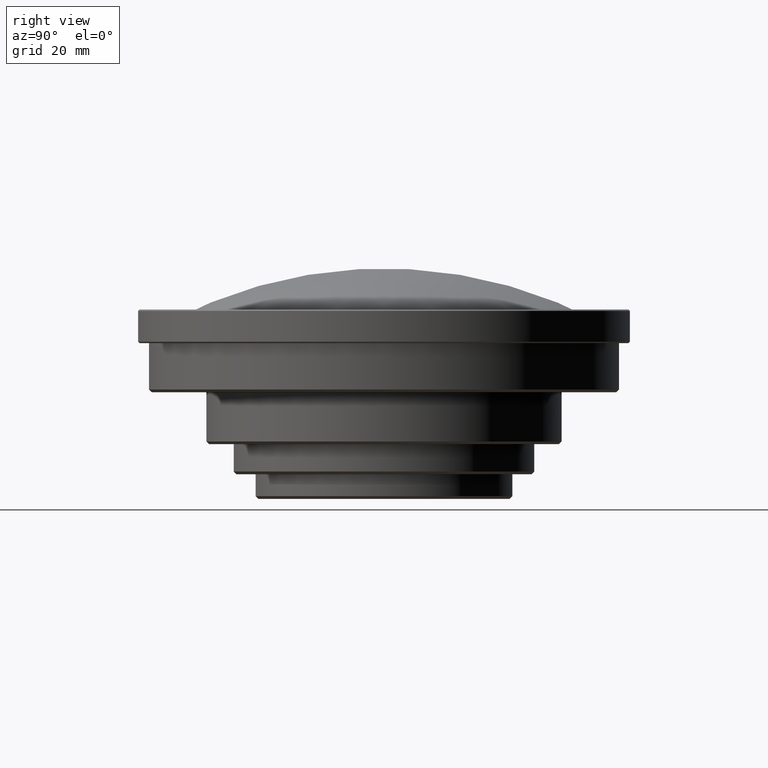
[diagram: clean part render]
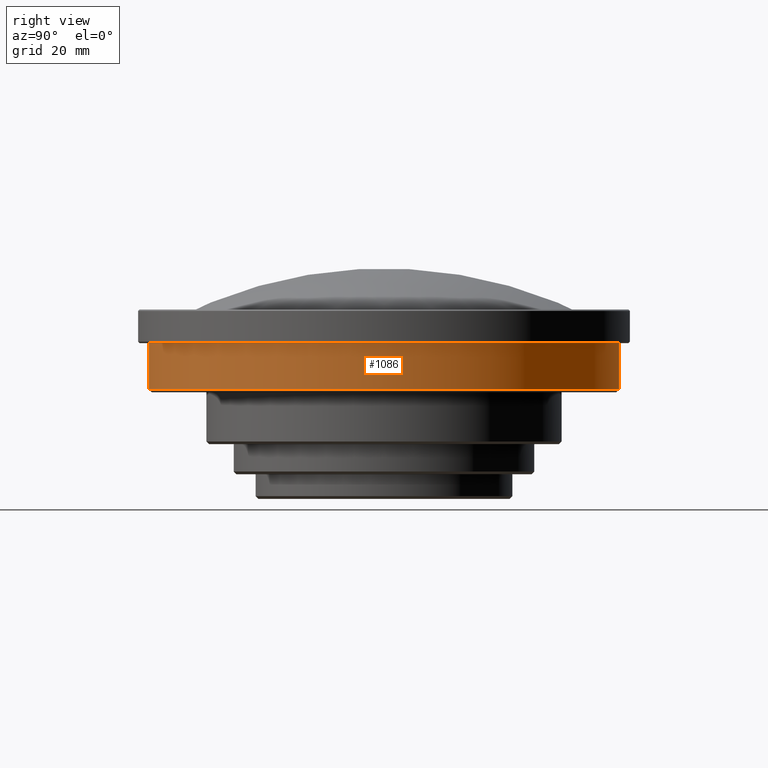
[diagram: same view with one face highlighted and labeled with its STEP entity id]
A machine part, right view. The second image highlights one B-rep face of the part: STEP entity #1086.
In plain terms, the highlighted cylindrical surface (partial cylindrical patch) has radius 86 mm, axis along (0, 0, -1).
Its self-contained STEP definition (entity closure, byte-faithful):
#14 = DIRECTION ( 'NONE',  ( 0.000000000000000000, -1.000000000000000000, 0.000000000000000000 ) ) ;
#52 = EDGE_CURVE ( 'NONE', #144, #113, #207, .T. ) ;
#89 = DIRECTION ( 'NONE',  ( 0.000000000000000000, 1.000000000000000000, 0.000000000000000000 ) ) ;
#94 = LINE ( 'NONE', #344, #277 ) ;
#113 = VERTEX_POINT ( 'NONE', #757 ) ;
#144 = VERTEX_POINT ( 'NONE', #1054 ) ;
#197 = CYLINDRICAL_SURFACE ( 'NONE', #463, 86.00000000000000000 ) ;
#207 = CIRCLE ( 'NONE', #419, 86.00000000000000000 ) ;
#277 = VECTOR ( 'NONE', #422, 1000.000000000000000 ) ;
#298 = DIRECTION ( 'NONE',  ( 0.000000000000000000, 0.000000000000000000, -1.000000000000000000 ) ) ;
#318 = EDGE_CURVE ( 'NONE', #406, #144, #673, .T. ) ;
#344 = CARTESIAN_POINT ( 'NONE',  ( -1.053196247266999953E-14, -86.00000000000000000, 46.17999999999999972 ) ) ;
#380 = FACE_OUTER_BOUND ( 'NONE', #486, .T. ) ;
#384 = EDGE_CURVE ( 'NONE', #662, #113, #94, .T. ) ;
#406 = VERTEX_POINT ( 'NONE', #779 ) ;
#419 = AXIS2_PLACEMENT_3D ( 'NONE', #849, #862, #89 ) ;
#422 = DIRECTION ( 'NONE',  ( 0.000000000000000000, 0.000000000000000000, 1.000000000000000000 ) ) ;
#454 = DIRECTION ( 'NONE',  ( 0.000000000000000000, 1.000000000000000000, 0.000000000000000000 ) ) ;
#463 = AXIS2_PLACEMENT_3D ( 'NONE', #724, #298, #14 ) ;
#486 = EDGE_LOOP ( 'NONE', ( #899, #961, #491, #912 ) ) ;
#491 = ORIENTED_EDGE ( 'NONE', *, *, #783, .F. ) ;
#589 = CARTESIAN_POINT ( 'NONE',  ( -1.053196247266999953E-14, -86.00000000000000000, 46.17999999999999972 ) ) ;
#622 = CARTESIAN_POINT ( 'NONE',  ( 0.000000000000000000, -1.122797425597999966E-14, 46.17999999999999972 ) ) ;
#662 = VERTEX_POINT ( 'NONE', #589 ) ;
#673 = LINE ( 'NONE', #1026, #744 ) ;
#724 = CARTESIAN_POINT ( 'NONE',  ( 0.000000000000000000, -1.122797425597999966E-14, 94.71599481863999870 ) ) ;
#744 = VECTOR ( 'NONE', #850, 1000.000000000000000 ) ;
#757 = CARTESIAN_POINT ( 'NONE',  ( 0.000000000000000000, -86.00000000000000000, 63.17999999959999968 ) ) ;
#779 = CARTESIAN_POINT ( 'NONE',  ( 1.053196247266999953E-14, 86.00000000000000000, 46.17999999999999972 ) ) ;
#783 = EDGE_CURVE ( 'NONE', #406, #662, #914, .T. ) ;
#849 = CARTESIAN_POINT ( 'NONE',  ( 0.000000000000000000, -1.122797425597999966E-14, 63.17999999959999968 ) ) ;
#850 = DIRECTION ( 'NONE',  ( 0.000000000000000000, 0.000000000000000000, 1.000000000000000000 ) ) ;
#862 = DIRECTION ( 'NONE',  ( 0.000000000000000000, 0.000000000000000000, -1.000000000000000000 ) ) ;
#899 = ORIENTED_EDGE ( 'NONE', *, *, #52, .T. ) ;
#912 = ORIENTED_EDGE ( 'NONE', *, *, #318, .T. ) ;
#914 = CIRCLE ( 'NONE', #1018, 86.00000000000000000 ) ;
#961 = ORIENTED_EDGE ( 'NONE', *, *, #384, .F. ) ;
#962 = DIRECTION ( 'NONE',  ( 0.000000000000000000, 0.000000000000000000, -1.000000000000000000 ) ) ;
#1018 = AXIS2_PLACEMENT_3D ( 'NONE', #622, #962, #454 ) ;
#1026 = CARTESIAN_POINT ( 'NONE',  ( 1.053196247266999953E-14, 86.00000000000000000, 46.17999999999999972 ) ) ;
#1054 = CARTESIAN_POINT ( 'NONE',  ( 0.000000000000000000, 86.00000000000000000, 63.17999999959999968 ) ) ;
#1086 = ADVANCED_FACE ( 'NONE', ( #380 ), #197, .T. ) ;